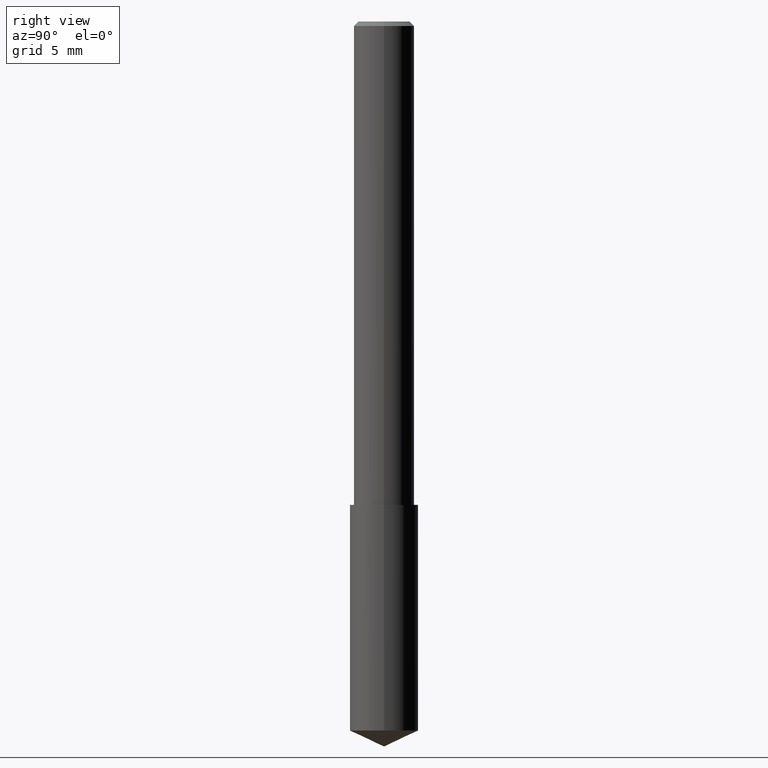
[diagram: clean part render]
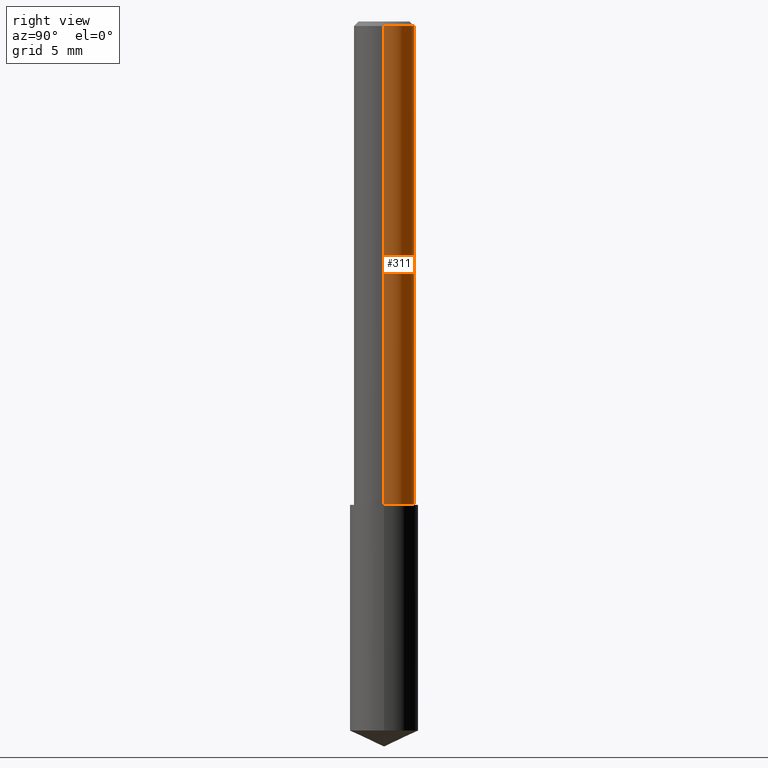
[diagram: same view with one face highlighted and labeled with its STEP entity id]
A machine part, right view. The second image highlights one B-rep face of the part: STEP entity #311.
In plain terms, the highlighted cylindrical surface (edge-blend (fillet) strip) has radius 1.5875 mm, axis along (-0, 0, 1).
Its self-contained STEP definition (entity closure, byte-faithful):
#2 = CARTESIAN_POINT ( 'NONE',  ( -0.06250000000000012490, -1.318017778347335489E-15, -1.000000000000000222 ) ) ;
#7 = AXIS2_PLACEMENT_3D ( 'NONE', #167, #271, #143 ) ;
#13 = AXIS2_PLACEMENT_3D ( 'NONE', #178, #123, #198 ) ;
#16 = LINE ( 'NONE', #20, #108 ) ;
#20 = CARTESIAN_POINT ( 'NONE',  ( 0.06250000000000006939, -4.364351673553921624E-16, 3.047610484872463374E-30 ) ) ;
#23 = ORIENTED_EDGE ( 'NONE', *, *, #210, .F. ) ;
#38 = DIRECTION ( 'NONE',  ( -2.445468806185136597E-29, 3.491481338843145583E-15, 1.000000000000000000 ) ) ;
#48 = ORIENTED_EDGE ( 'NONE', *, *, #91, .T. ) ;
#56 = EDGE_LOOP ( 'NONE', ( #48, #96, #23, #231 ) ) ;
#60 = DIRECTION ( 'NONE',  ( 1.000000000000000000, -6.982962677686266711E-15, 4.876176775795935793E-29 ) ) ;
#77 = LINE ( 'NONE', #202, #244 ) ;
#81 = DIRECTION ( 'NONE',  ( -2.445468806185136877E-29, 3.491481338843145188E-15, 1.000000000000000000 ) ) ;
#87 = EDGE_CURVE ( 'NONE', #291, #227, #16, .T. ) ;
#88 = CYLINDRICAL_SURFACE ( 'NONE', #208, 0.06250000000000006939 ) ;
#91 = EDGE_CURVE ( 'NONE', #291, #197, #177, .T. ) ;
#96 = ORIENTED_EDGE ( 'NONE', *, *, #109, .T. ) ;
#108 = VECTOR ( 'NONE', #310, 39.37007874015748143 ) ;
#109 = EDGE_CURVE ( 'NONE', #197, #332, #77, .T. ) ;
#123 = DIRECTION ( 'NONE',  ( -2.445468806185136597E-29, 3.491481338843145583E-15, 1.000000000000000000 ) ) ;
#143 = DIRECTION ( 'NONE',  ( 1.000000000000000000, -6.982962677686266711E-15, 0.000000000000000000 ) ) ;
#167 = CARTESIAN_POINT ( 'NONE',  ( 2.292627005798580623E-31, -3.273263755165470801E-17, -0.009375000000000062103 ) ) ;
#177 = CIRCLE ( 'NONE', #13, 0.06250000000000012490 ) ;
#178 = CARTESIAN_POINT ( 'NONE',  ( 2.445468806185137438E-29, -3.491481338843146371E-15, -1.000000000000000222 ) ) ;
#184 = CARTESIAN_POINT ( 'NONE',  ( 0.06250000000000012490, -3.927916506198539224E-15, -1.000000000000000222 ) ) ;
#197 = VERTEX_POINT ( 'NONE', #2 ) ;
#198 = DIRECTION ( 'NONE',  ( 1.000000000000000000, -6.982962677686264344E-15, 0.000000000000000000 ) ) ;
#199 = CIRCLE ( 'NONE', #7, 0.06250000000000000000 ) ;
#202 = CARTESIAN_POINT ( 'NONE',  ( -0.06250000000000006939, 4.440892098500631092E-16, -3.074334431409319267E-30 ) ) ;
#208 = AXIS2_PLACEMENT_3D ( 'NONE', #235, #38, #60 ) ;
#210 = EDGE_CURVE ( 'NONE', #227, #332, #199, .T. ) ;
#227 = VERTEX_POINT ( 'NONE', #300 ) ;
#231 = ORIENTED_EDGE ( 'NONE', *, *, #87, .F. ) ;
#235 = CARTESIAN_POINT ( 'NONE',  ( 0.000000000000000000, 0.000000000000000000, 0.000000000000000000 ) ) ;
#244 = VECTOR ( 'NONE', #81, 39.37007874015748143 ) ;
#271 = DIRECTION ( 'NONE',  ( -2.445468806185136597E-29, 3.491481338843145583E-15, 1.000000000000000000 ) ) ;
#291 = VERTEX_POINT ( 'NONE', #184 ) ;
#292 = FACE_OUTER_BOUND ( 'NONE', #56, .T. ) ;
#295 = CARTESIAN_POINT ( 'NONE',  ( -0.06250000000000000000, -1.318017778347336672E-15, -0.009375000000000062103 ) ) ;
#300 = CARTESIAN_POINT ( 'NONE',  ( 0.06250000000000000000, -4.691678049070463404E-16, -0.009375000000000062103 ) ) ;
#310 = DIRECTION ( 'NONE',  ( -2.445468806185136877E-29, 3.491481338843145188E-15, 1.000000000000000000 ) ) ;
#311 = ADVANCED_FACE ( 'NONE', ( #292 ), #88, .T. ) ;
#332 = VERTEX_POINT ( 'NONE', #295 ) ;